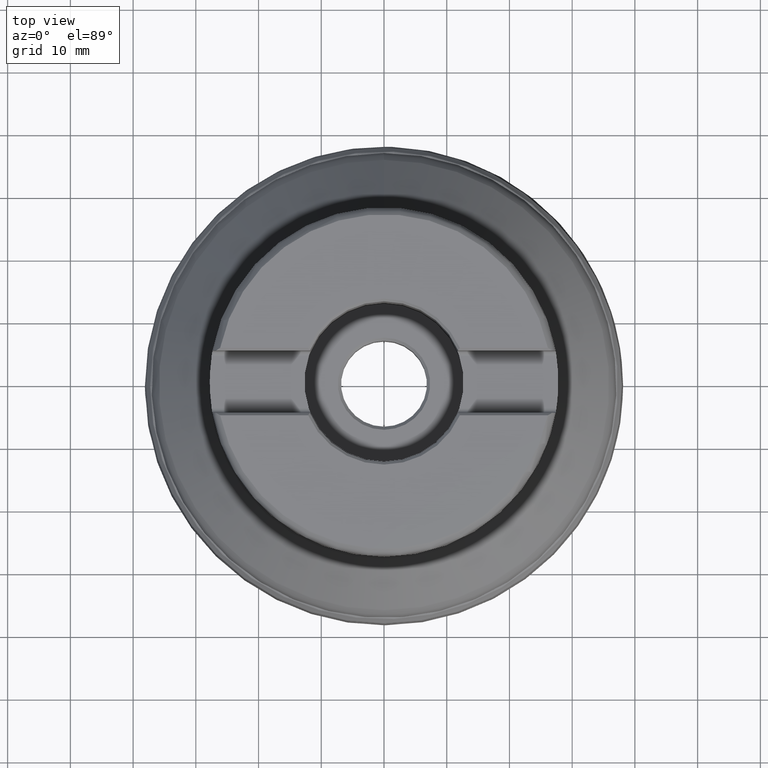
[diagram: clean part render]
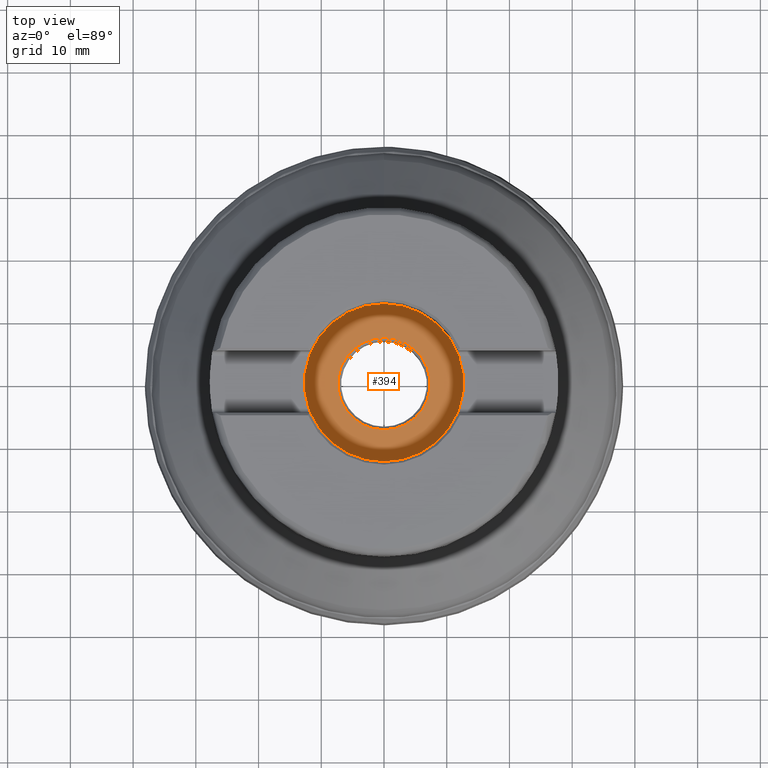
[diagram: same view with one face highlighted and labeled with its STEP entity id]
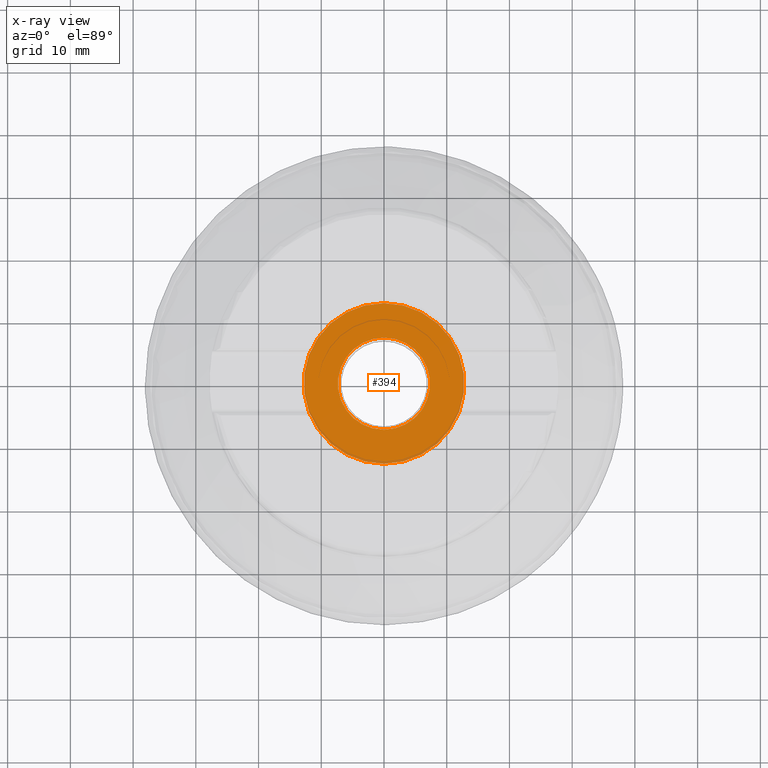
[diagram: x-ray of the same camera — body ghosted, the highlighted face saturated]
A machine part, top view. The second image highlights one B-rep face of the part: STEP entity #394.
The next image is the same camera in x-ray: the body ghosted, the highlighted face saturated — about 3% of this face is hidden behind the body in this view.
In plain terms, the highlighted planar face has unit normal (0, 0, 1).
Its self-contained STEP definition (entity closure, byte-faithful):
#194=FACE_BOUND('',#520,.T.);
#195=FACE_BOUND('',#521,.T.);
#299=PLANE('',#1271);
#394=ADVANCED_FACE('',(#194,#195),#299,.T.);
#520=EDGE_LOOP('',(#819));
#521=EDGE_LOOP('',(#820));
#641=CIRCLE('',#1269,12.8);
#642=CIRCLE('',#1270,7.35);
#819=ORIENTED_EDGE('',*,*,#1095,.T.);
#820=ORIENTED_EDGE('',*,*,#1096,.T.);
#976=VERTEX_POINT('',#2253);
#977=VERTEX_POINT('',#2255);
#1095=EDGE_CURVE('',#976,#976,#641,.T.);
#1096=EDGE_CURVE('',#977,#977,#642,.T.);
#1269=AXIS2_PLACEMENT_3D('',#2252,#1492,#1493);
#1270=AXIS2_PLACEMENT_3D('',#2254,#1494,#1495);
#1271=AXIS2_PLACEMENT_3D('',#2256,#1496,#1497);
#1492=DIRECTION('',(0.,1.17145536458252E-15,1.));
#1493=DIRECTION('',(0.,-1.,1.0842021724855E-15));
#1494=DIRECTION('',(0.,-1.17145536458252E-15,-1.));
#1495=DIRECTION('',(0.,-1.,9.44067197810507E-16));
#1496=DIRECTION('',(0.,1.17145536458252E-15,1.));
#1497=DIRECTION('',(0.,-1.,1.17267306976032E-15));
#2252=CARTESIAN_POINT('',(0.,2.97549662603961E-14,25.4));
#2253=CARTESIAN_POINT('',(0.,-12.8,25.4));
#2254=CARTESIAN_POINT('',(0.,2.97549662603961E-14,25.4));
#2255=CARTESIAN_POINT('',(0.,-7.34999999999997,25.4));
#2256=CARTESIAN_POINT('',(6.85,2.97549662603961E-14,25.4));